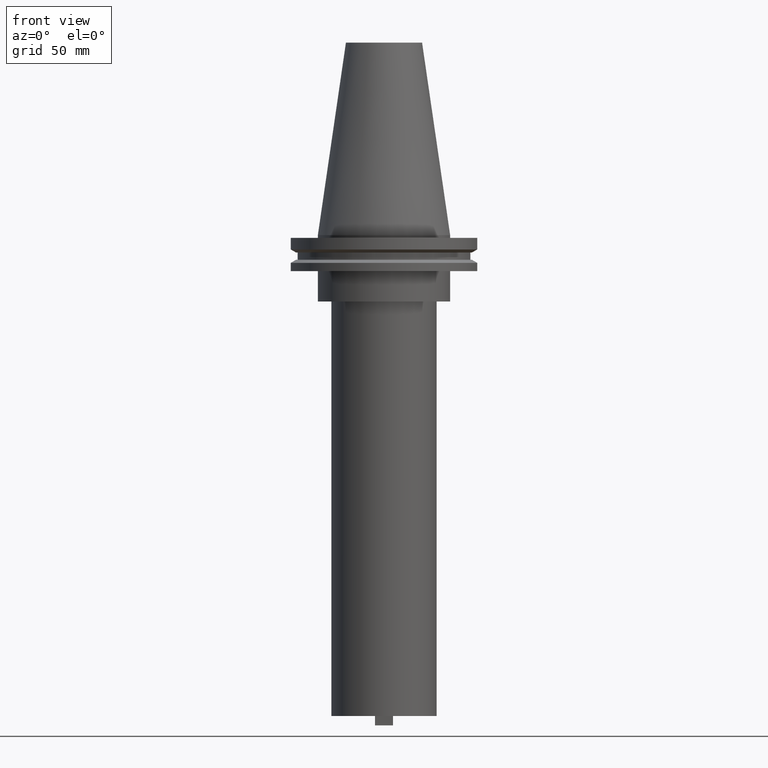
[diagram: clean part render]
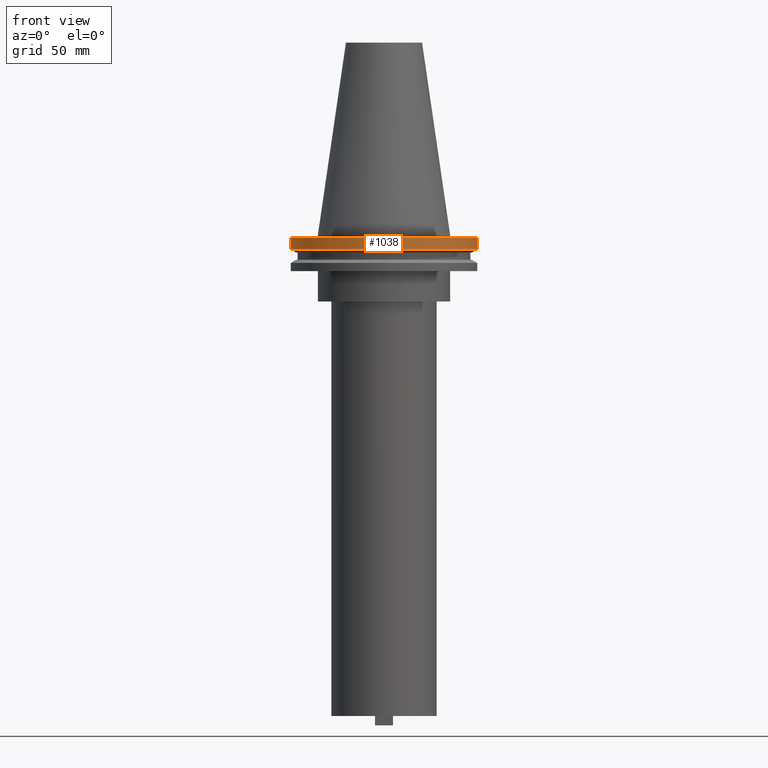
[diagram: same view with one face highlighted and labeled with its STEP entity id]
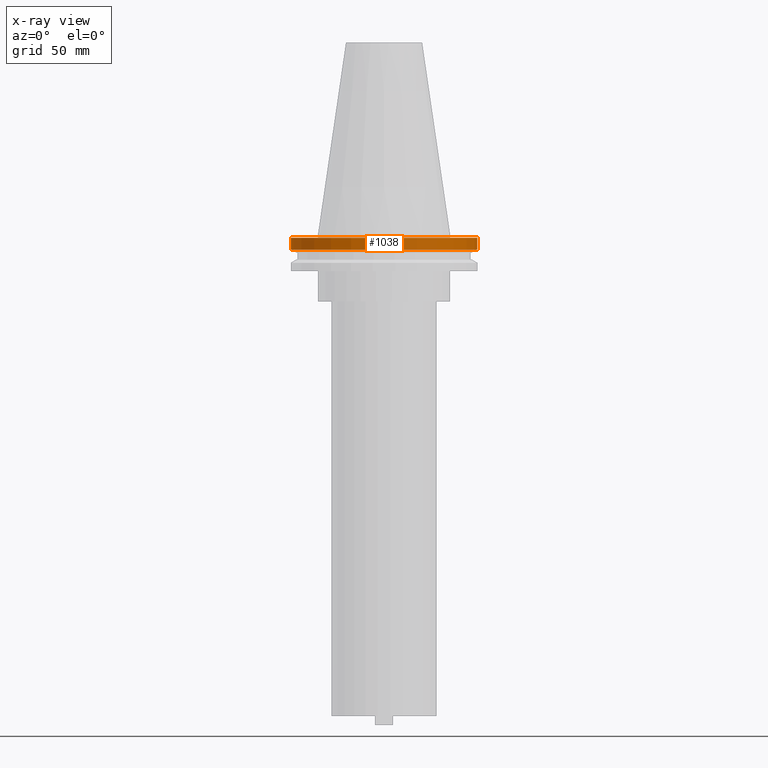
[diagram: x-ray of the same camera — body ghosted, the highlighted face saturated]
A machine part, front view. The second image highlights one B-rep face of the part: STEP entity #1038.
The next image is the same camera in x-ray: the body ghosted, the highlighted face saturated — about 0% of this face is hidden behind the body in this view.
In plain terms, the highlighted cylindrical surface (partial cylindrical patch) has radius 49.215 mm, axis along (-0, -0, 1).
Its self-contained STEP definition (entity closure, byte-faithful):
#48 = CARTESIAN_POINT ( 'NONE',  ( 49.21499999999999631, 0.000000000000000000, -1.499999999999987566 ) ) ;
#54 = ORIENTED_EDGE ( 'NONE', *, *, #493, .F. ) ;
#66 = CIRCLE ( 'NONE', #243, 49.21500000000000341 ) ;
#79 = ORIENTED_EDGE ( 'NONE', *, *, #954, .T. ) ;
#235 = EDGE_CURVE ( 'NONE', #772, #991, #66, .T. ) ;
#243 = AXIS2_PLACEMENT_3D ( 'NONE', #845, #683, #512 ) ;
#244 = LINE ( 'NONE', #333, #443 ) ;
#273 = ORIENTED_EDGE ( 'NONE', *, *, #235, .T. ) ;
#307 = CARTESIAN_POINT ( 'NONE',  ( 49.21500000000000341, 0.000000000000000000, -7.602389855251287187 ) ) ;
#333 = CARTESIAN_POINT ( 'NONE',  ( 49.21499999999999631, 0.000000000000000000, 101.5999999999999943 ) ) ;
#365 = CARTESIAN_POINT ( 'NONE',  ( -49.21500000000000341, 6.027099222003699404E-15, -7.602389855251287187 ) ) ;
#411 = CYLINDRICAL_SURFACE ( 'NONE', #681, 49.21499999999999631 ) ;
#429 = ORIENTED_EDGE ( 'NONE', *, *, #960, .F. ) ;
#443 = VECTOR ( 'NONE', #1073, 1000.000000000000000 ) ;
#450 = EDGE_LOOP ( 'NONE', ( #54, #273, #79, #429 ) ) ;
#485 = VERTEX_POINT ( 'NONE', #48 ) ;
#493 = EDGE_CURVE ( 'NONE', #772, #687, #719, .T. ) ;
#494 = CARTESIAN_POINT ( 'NONE',  ( 0.000000000000000000, 0.000000000000000000, -1.499999999999987566 ) ) ;
#512 = DIRECTION ( 'NONE',  ( 1.000000000000000000, 0.000000000000000000, 0.000000000000000000 ) ) ;
#528 = VECTOR ( 'NONE', #961, 1000.000000000000000 ) ;
#560 = DIRECTION ( 'NONE',  ( -0.000000000000000000, -0.000000000000000000, 1.000000000000000000 ) ) ;
#573 = DIRECTION ( 'NONE',  ( 1.000000000000000000, 0.000000000000000000, 0.000000000000000000 ) ) ;
#579 = AXIS2_PLACEMENT_3D ( 'NONE', #494, #903, #666 ) ;
#666 = DIRECTION ( 'NONE',  ( 1.000000000000000000, 0.000000000000000000, 0.000000000000000000 ) ) ;
#681 = AXIS2_PLACEMENT_3D ( 'NONE', #993, #560, #573 ) ;
#683 = DIRECTION ( 'NONE',  ( -0.000000000000000000, -0.000000000000000000, 1.000000000000000000 ) ) ;
#687 = VERTEX_POINT ( 'NONE', #914 ) ;
#719 = LINE ( 'NONE', #1057, #528 ) ;
#772 = VERTEX_POINT ( 'NONE', #365 ) ;
#845 = CARTESIAN_POINT ( 'NONE',  ( 0.000000000000000000, 0.000000000000000000, -7.602389855251287187 ) ) ;
#903 = DIRECTION ( 'NONE',  ( -0.000000000000000000, -0.000000000000000000, 1.000000000000000000 ) ) ;
#907 = FACE_OUTER_BOUND ( 'NONE', #450, .T. ) ;
#914 = CARTESIAN_POINT ( 'NONE',  ( -49.21499999999999631, 6.027099222003697826E-15, -1.499999999999987566 ) ) ;
#954 = EDGE_CURVE ( 'NONE', #991, #485, #244, .T. ) ;
#960 = EDGE_CURVE ( 'NONE', #687, #485, #1053, .T. ) ;
#961 = DIRECTION ( 'NONE',  ( -0.000000000000000000, -0.000000000000000000, 1.000000000000000000 ) ) ;
#991 = VERTEX_POINT ( 'NONE', #307 ) ;
#993 = CARTESIAN_POINT ( 'NONE',  ( 0.000000000000000000, 0.000000000000000000, 101.5999999999999943 ) ) ;
#1038 = ADVANCED_FACE ( 'NONE', ( #907 ), #411, .T. ) ;
#1053 = CIRCLE ( 'NONE', #579, 49.21499999999999631 ) ;
#1057 = CARTESIAN_POINT ( 'NONE',  ( -49.21499999999999631, 6.027099222003697826E-15, 101.5999999999999943 ) ) ;
#1073 = DIRECTION ( 'NONE',  ( -0.000000000000000000, -0.000000000000000000, 1.000000000000000000 ) ) ;